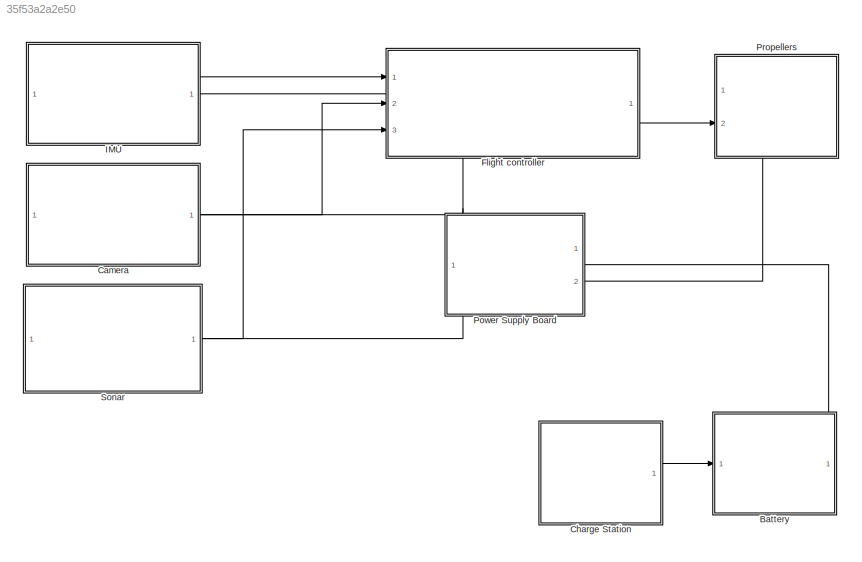
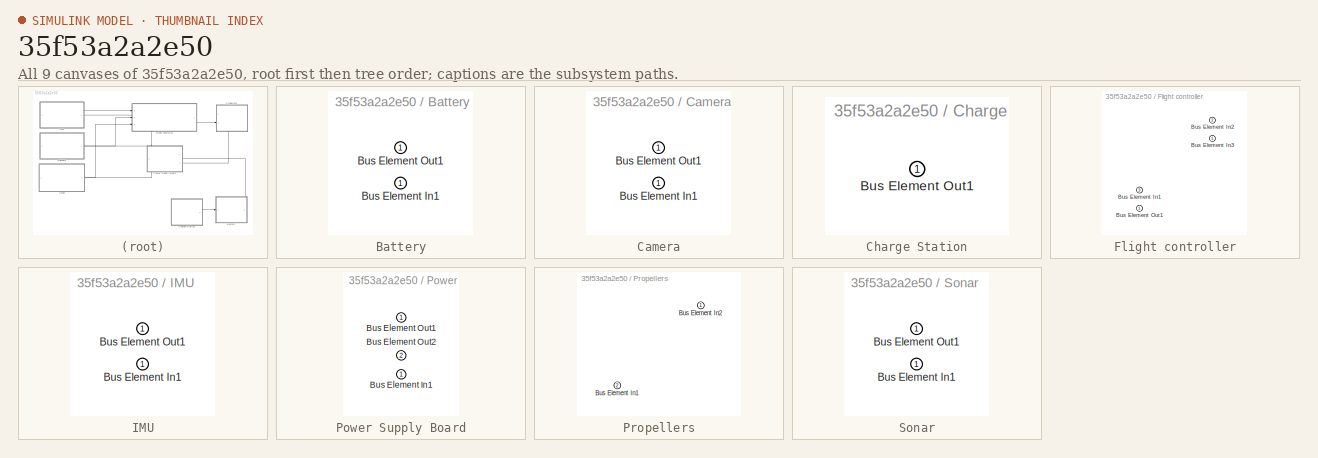
[diagram: thumbnail index - all 9 canvases of the model, root first then tree order]
MODEL slx_35f53a2a2e50
KIND model
CONFIG AbsTol = auto
CONFIG EnableMultiTasking = off
CONFIG FixedStep = auto
CONFIG MaxStep = auto
CONFIG MinStep = auto
CONFIG RelTol = 1e-3
CONFIG SampleTimeConstraint = Unconstrained
CONFIG SolverName = VariableStepAuto
CONFIG StartTime = 0.0
CONFIG StopTime = 10.0
WORKSPACE source: mxarray member
WORKSPACE sensorData: Simulink.Bus (value not decoded)
BLOCK [SubSystem] Battery
  PortSchema = {"entries":[{"content":{"headerSize":26,"margin":15,"minimumSpacing":25,"sides":[{"content":{"connectorIds":["Out1","In1"]},"type":"ConnectorPlacement.EquallySpacedRectSide","uuid":"982650e6-ddcc-430e-b118-190f1a8c1bc9"},{"content":{"connectorIds":[],"side":"RIGHT"},"type":"ConnectorPlacement.EquallySpacedRectSide","uuid":"ed844e2c-e9bb-41b6-92bb-7e682fbb84b4"},{"content":{"connectorIds":[],"side"...<+433ch>
  Ports = [1, 1]
  RequestExecContextInheritance = off
BLOCK [Inport] Battery/Bus Element In1
BLOCK [Outport] Battery/Bus Element Out1
BLOCK [SubSystem] Camera
  PortSchema = {"entries":[{"content":{"headerSize":26,"margin":15,"minimumSpacing":25,"sides":[{"content":{"connectorIds":[]},"type":"ConnectorPlacement.EquallySpacedRectSide","uuid":"982650e6-ddcc-430e-b118-190f1a8c1bc9"},{"content":{"connectorIds":["Out1","In1"],"side":"RIGHT"},"type":"ConnectorPlacement.EquallySpacedRectSide","uuid":"ed844e2c-e9bb-41b6-92bb-7e682fbb84b4"},{"content":{"connectorIds":[],"side"...<+289ch>
  Ports = [1, 1]
  RequestExecContextInheritance = off
BLOCK [Inport] Camera/Bus Element In1
BLOCK [Outport] Camera/Bus Element Out1
BLOCK [SubSystem] Charge Station
  PortSchema = {"entries":[{"content":{"headerSize":26,"margin":15,"minimumSpacing":25,"sides":[{"content":{"connectorIds":[]},"type":"ConnectorPlacement.EquallySpacedRectSide","uuid":"982650e6-ddcc-430e-b118-190f1a8c1bc9"},{"content":{"connectorIds":["Out1"],"side":"RIGHT"},"type":"ConnectorPlacement.EquallySpacedRectSide","uuid":"ed844e2c-e9bb-41b6-92bb-7e682fbb84b4"},{"content":{"connectorIds":[],"side":"TOP"...<+427ch>
  Ports = [0, 1]
  RequestExecContextInheritance = off
BLOCK [Outport] Charge Station/Bus Element Out1
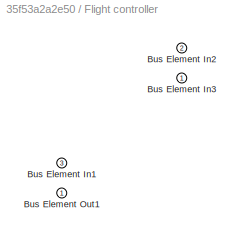
BLOCK [SubSystem] Flight controller
  PortSchema = {"entries":[{"content":{"headerSize":26,"margin":15,"minimumSpacing":25,"sides":[{"content":{"connectorIds":["In1","In2","In3"]},"type":"ConnectorPlacement.EquallySpacedRectSide","uuid":"982650e6-ddcc-430e-b118-190f1a8c1bc9"},{"content":{"connectorIds":["Out1"],"side":"RIGHT"},"type":"ConnectorPlacement.EquallySpacedRectSide","uuid":"ed844e2c-e9bb-41b6-92bb-7e682fbb84b4"},{"content":{"connectorIds...<+300ch>
  Ports = [3, 1]
  RequestExecContextInheritance = off
BLOCK [Inport] Flight controller/Bus Element In1
  Port = 3
BLOCK [Inport] Flight controller/Bus Element In2
  Port = 2
BLOCK [Inport] Flight controller/Bus Element In3
BLOCK [Outport] Flight controller/Bus Element Out1
BLOCK [SubSystem] IMU
  PortSchema = {"entries":[{"content":{"headerSize":26,"margin":15,"minimumSpacing":25,"sides":[{"content":{"connectorIds":[]},"type":"ConnectorPlacement.EquallySpacedRectSide","uuid":"982650e6-ddcc-430e-b118-190f1a8c1bc9"},{"content":{"connectorIds":["Out1","In1"],"side":"RIGHT"},"type":"ConnectorPlacement.EquallySpacedRectSide","uuid":"ed844e2c-e9bb-41b6-92bb-7e682fbb84b4"},{"content":{"connectorIds":[],"side"...<+289ch>
  Ports = [1, 1]
  RequestExecContextInheritance = off
BLOCK [Inport] IMU/Bus Element In1
BLOCK [Outport] IMU/Bus Element Out1
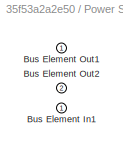
BLOCK [SubSystem] Power Supply Board
  PortSchema = {"entries":[{"content":{"headerSize":26,"margin":15,"minimumSpacing":25,"sides":[{"content":{"connectorIds":["Out1"]},"type":"ConnectorPlacement.EquallySpacedRectSide","uuid":"982650e6-ddcc-430e-b118-190f1a8c1bc9"},{"content":{"connectorIds":["Out2","In1"],"side":"RIGHT"},"type":"ConnectorPlacement.EquallySpacedRectSide","uuid":"ed844e2c-e9bb-41b6-92bb-7e682fbb84b4"},{"content":{"connectorIds":[],...<+439ch>
  Ports = [1, 2]
  RequestExecContextInheritance = off
BLOCK [Inport] Power Supply Board/Bus Element In1
BLOCK [Outport] Power Supply Board/Bus Element Out1
BLOCK [Outport] Power Supply Board/Bus Element Out2
  Port = 2
BLOCK [SubSystem] Propellers
  PortSchema = {"entries":[{"content":{"headerSize":26,"margin":15,"minimumSpacing":25,"sides":[{"content":{"connectorIds":["In2"]},"type":"ConnectorPlacement.EquallySpacedRectSide","uuid":"982650e6-ddcc-430e-b118-190f1a8c1bc9"},{"content":{"connectorIds":[],"side":"RIGHT"},"type":"ConnectorPlacement.EquallySpacedRectSide","uuid":"ed844e2c-e9bb-41b6-92bb-7e682fbb84b4"},{"content":{"connectorIds":[],"side":"TOP"}...<+431ch>
  Ports = [2]
  RequestExecContextInheritance = off
BLOCK [Inport] Propellers/Bus Element In1
  Port = 2
BLOCK [Inport] Propellers/Bus Element In2
BLOCK [SubSystem] Sonar
  PortSchema = {"entries":[{"content":{"headerSize":26,"margin":15,"minimumSpacing":25,"sides":[{"content":{"connectorIds":[]},"type":"ConnectorPlacement.EquallySpacedRectSide","uuid":"982650e6-ddcc-430e-b118-190f1a8c1bc9"},{"content":{"connectorIds":["Out1","In1"],"side":"RIGHT"},"type":"ConnectorPlacement.EquallySpacedRectSide","uuid":"ed844e2c-e9bb-41b6-92bb-7e682fbb84b4"},{"content":{"connectorIds":[],"side"...<+433ch>
  Ports = [1, 1]
  RequestExecContextInheritance = off
BLOCK [Inport] Sonar/Bus Element In1
BLOCK [Outport] Sonar/Bus Element Out1
LINE Battery:1 -> Power Supply Board:1
LINE Camera:1 -> Flight controller:2
LINE Charge Station:1 -> Battery:1
LINE Flight controller:1 -> Propellers:2
LINE IMU:1 -> Flight controller:1
NET Power Supply Board:1 -> Camera:1, IMU:1, Sonar:1
LINE Power Supply Board:2 -> Propellers:1
LINE Sonar:1 -> Flight controller:3
note: NET lines group one-source signal fan-out (src -> all destinations, sorted); 1:1 wires keep LINE
